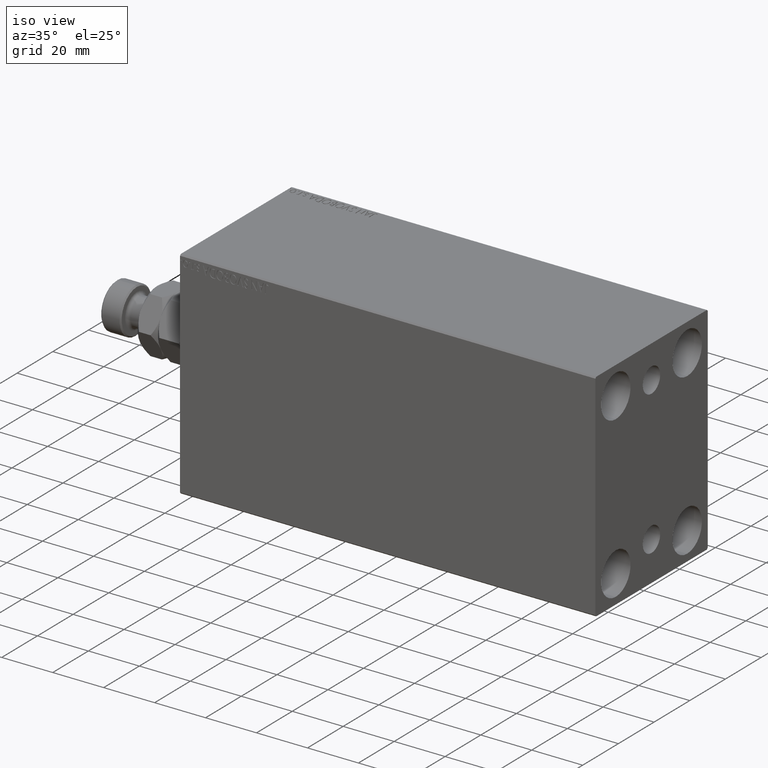
[diagram: clean part render]
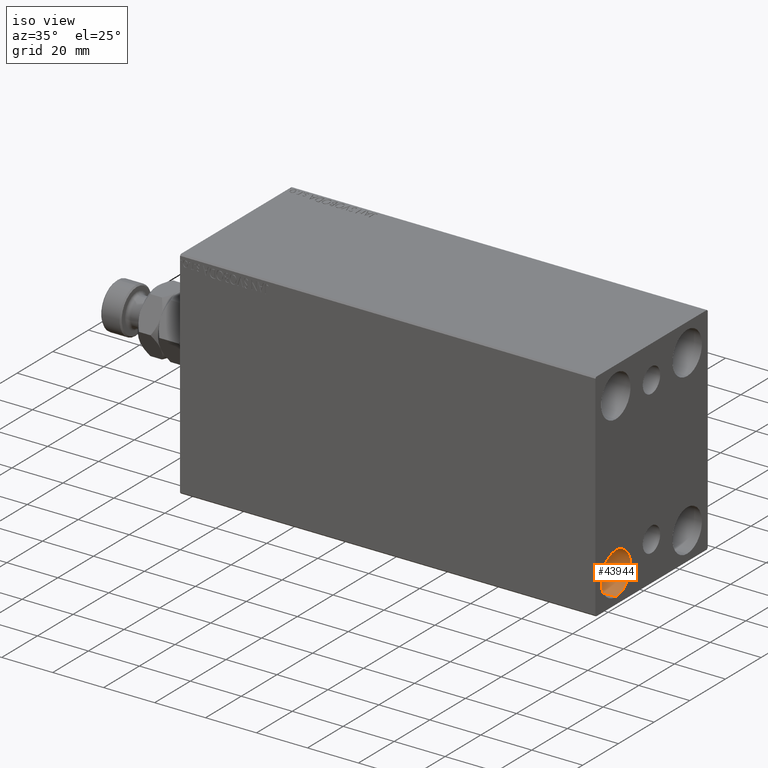
[diagram: same view with one face highlighted and labeled with its STEP entity id]
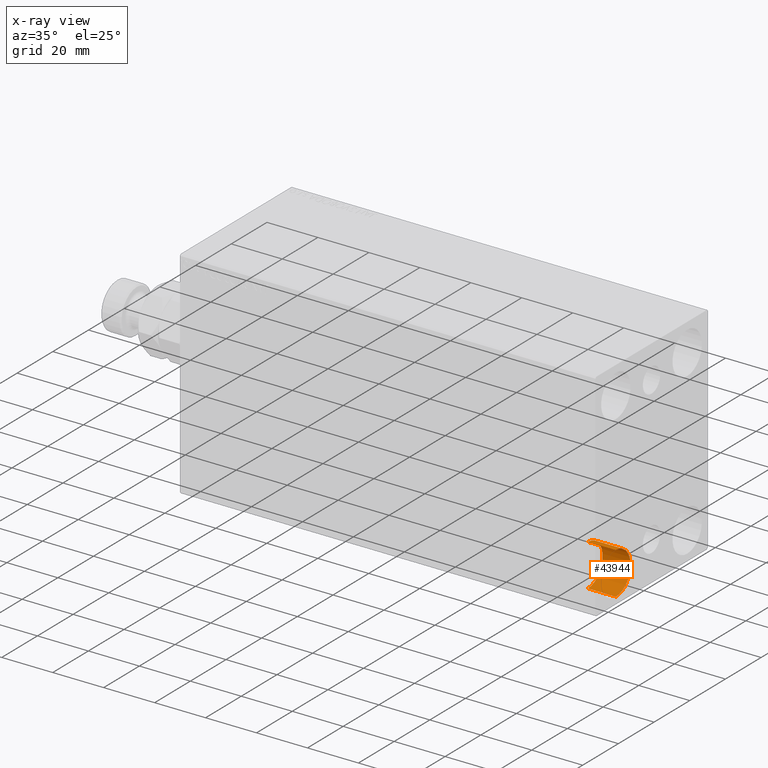
[diagram: x-ray of the same camera — body ghosted, the highlighted face saturated]
A machine part, iso view. The second image highlights one B-rep face of the part: STEP entity #43944.
The next image is the same camera in x-ray: the body ghosted, the highlighted face saturated — about 0% of this face is hidden behind the body in this view.
In plain terms, the highlighted cylindrical surface (edge-blend (fillet) strip) has radius 8.25 mm, axis along (1, 0, 0).
Its self-contained STEP definition (entity closure, byte-faithful):
#569 = VECTOR ( 'NONE', #997, 1000.000000000000000 ) ;
#997 = DIRECTION ( 'NONE',  ( 1.000000000000000000, -0.000000000000000000, -0.000000000000000000 ) ) ;
#1915 = FACE_OUTER_BOUND ( 'NONE', #35373, .T. ) ;
#2579 = EDGE_CURVE ( 'NONE', #8126, #43466, #12169, .T. ) ;
#2887 = EDGE_CURVE ( 'NONE', #8126, #26272, #35527, .T. ) ;
#4568 = CARTESIAN_POINT ( 'NONE',  ( 152.0000000000000000, -20.00000000000000355, -23.24999999999999289 ) ) ;
#6122 = CARTESIAN_POINT ( 'NONE',  ( 163.0000000000000000, -20.00000000000000355, -31.49999999999999289 ) ) ;
#6480 = EDGE_CURVE ( 'NONE', #43466, #35188, #39544, .T. ) ;
#6552 = AXIS2_PLACEMENT_3D ( 'NONE', #6122, #6579, #41892 ) ;
#6579 = DIRECTION ( 'NONE',  ( -1.000000000000000000, -0.000000000000000000, -0.000000000000000000 ) ) ;
#8126 = VERTEX_POINT ( 'NONE', #19331 ) ;
#12169 = CIRCLE ( 'NONE', #22440, 8.250000000000000000 ) ;
#13145 = DIRECTION ( 'NONE',  ( 0.000000000000000000, 0.000000000000000000, -1.000000000000000000 ) ) ;
#13585 = CARTESIAN_POINT ( 'NONE',  ( 152.0000000000000000, -20.00000000000000355, -31.49999999999999289 ) ) ;
#14436 = DIRECTION ( 'NONE',  ( 1.000000000000000000, -0.000000000000000000, -0.000000000000000000 ) ) ;
#19331 = CARTESIAN_POINT ( 'NONE',  ( 152.0000000000000000, -20.00000000000000355, -23.24999999999999289 ) ) ;
#19592 = CARTESIAN_POINT ( 'NONE',  ( 152.0000000000000000, -20.00000000000000355, -39.74999999999999289 ) ) ;
#20472 = CIRCLE ( 'NONE', #6552, 8.250000000000000000 ) ;
#22193 = CARTESIAN_POINT ( 'NONE',  ( 163.0000000000000000, -20.00000000000000355, -23.24999999999999289 ) ) ;
#22440 = AXIS2_PLACEMENT_3D ( 'NONE', #13585, #30816, #24605 ) ;
#24605 = DIRECTION ( 'NONE',  ( 0.000000000000000000, 0.000000000000000000, 1.000000000000000000 ) ) ;
#26272 = VERTEX_POINT ( 'NONE', #22193 ) ;
#27388 = CYLINDRICAL_SURFACE ( 'NONE', #38349, 8.250000000000000000 ) ;
#27724 = EDGE_CURVE ( 'NONE', #26272, #35188, #20472, .T. ) ;
#27957 = ORIENTED_EDGE ( 'NONE', *, *, #2579, .T. ) ;
#28331 = ORIENTED_EDGE ( 'NONE', *, *, #27724, .F. ) ;
#28788 = ORIENTED_EDGE ( 'NONE', *, *, #6480, .T. ) ;
#30364 = CARTESIAN_POINT ( 'NONE',  ( 152.0000000000000000, -20.00000000000000355, -31.49999999999999289 ) ) ;
#30816 = DIRECTION ( 'NONE',  ( -1.000000000000000000, -0.000000000000000000, -0.000000000000000000 ) ) ;
#31115 = ORIENTED_EDGE ( 'NONE', *, *, #2887, .F. ) ;
#35188 = VERTEX_POINT ( 'NONE', #43392 ) ;
#35373 = EDGE_LOOP ( 'NONE', ( #31115, #27957, #28788, #28331 ) ) ;
#35527 = LINE ( 'NONE', #4568, #42986 ) ;
#38349 = AXIS2_PLACEMENT_3D ( 'NONE', #30364, #44361, #13145 ) ;
#39544 = LINE ( 'NONE', #19592, #569 ) ;
#40656 = CARTESIAN_POINT ( 'NONE',  ( 152.0000000000000000, -20.00000000000000355, -39.74999999999999289 ) ) ;
#41892 = DIRECTION ( 'NONE',  ( 0.000000000000000000, 0.000000000000000000, 1.000000000000000000 ) ) ;
#42986 = VECTOR ( 'NONE', #14436, 1000.000000000000000 ) ;
#43392 = CARTESIAN_POINT ( 'NONE',  ( 163.0000000000000000, -20.00000000000000355, -39.74999999999999289 ) ) ;
#43466 = VERTEX_POINT ( 'NONE', #40656 ) ;
#43944 = ADVANCED_FACE ( 'NONE', ( #1915 ), #27388, .F. ) ;
#44361 = DIRECTION ( 'NONE',  ( 1.000000000000000000, -0.000000000000000000, -0.000000000000000000 ) ) ;